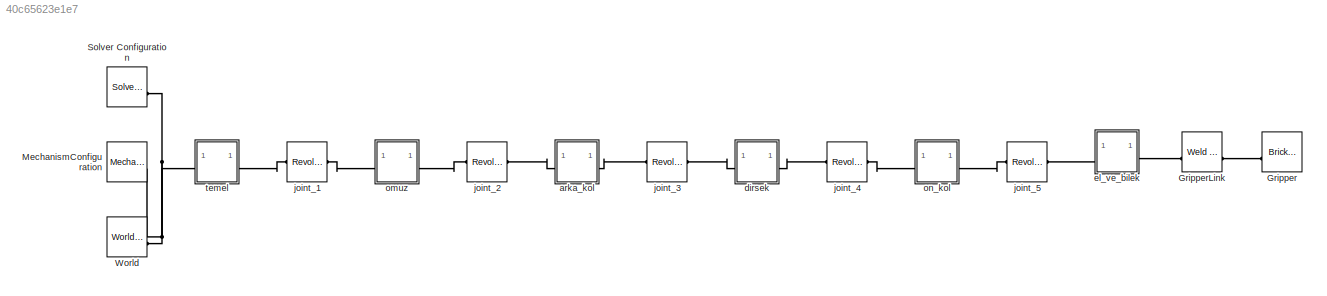
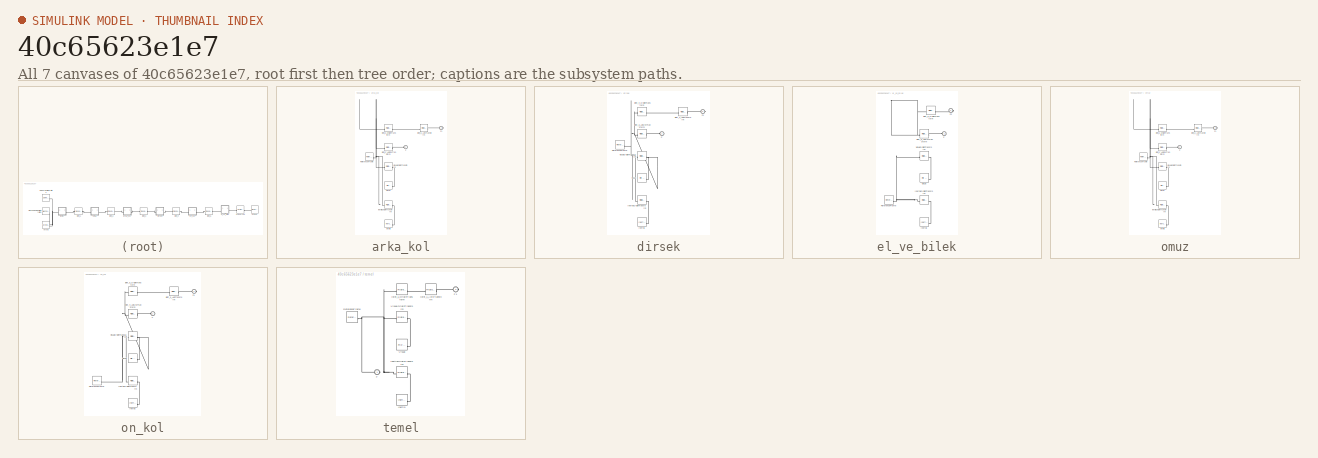
[diagram: thumbnail index - all 7 canvases of the model, root first then tree order]
MODEL slx_40c65623e1e7
KIND model
CONFIG AbsTol = auto
CONFIG EnableMultiTasking = off
CONFIG FixedStep = auto
CONFIG MaxStep = auto
CONFIG MinStep = auto
CONFIG RelTol = 1e-3
CONFIG SampleTimeConstraint = Unconstrained
CONFIG SolverName = VariableStepAuto
CONFIG StartTime = 0.0
CONFIG StopTime = 5
BLOCK [Reference] Gripper  REF=sm_lib/Body Elements/Brick Solid
  NameLocation = top
  SourceBlock = sm_lib/Body Elements/Brick Solid
  SourceType = Brick Solid
BLOCK [Reference] GripperLink  REF=sm_lib/Joints/Weld Joint
  SourceBlock = sm_lib/Joints/Weld Joint
  SourceType = Weld Joint
BLOCK [Reference] MechanismConfiguration  REF=sm_lib/Utilities/Mechanism
Configuration
  SourceBlock = sm_lib/Utilities/Mechanism\nConfiguration
  SourceType = Mechanism\nConfiguration
BLOCK [Reference] Solver Configuration  REF=nesl_utility/Solver
Configuration
  SourceBlock = nesl_utility/Solver\nConfiguration
  SourceType = Solver\nConfiguration
BLOCK [Reference] World  REF=sm_lib/Frames and
Transforms/World Frame
  SourceBlock = sm_lib/Frames and\nTransforms/World Frame
  SourceType = World Frame
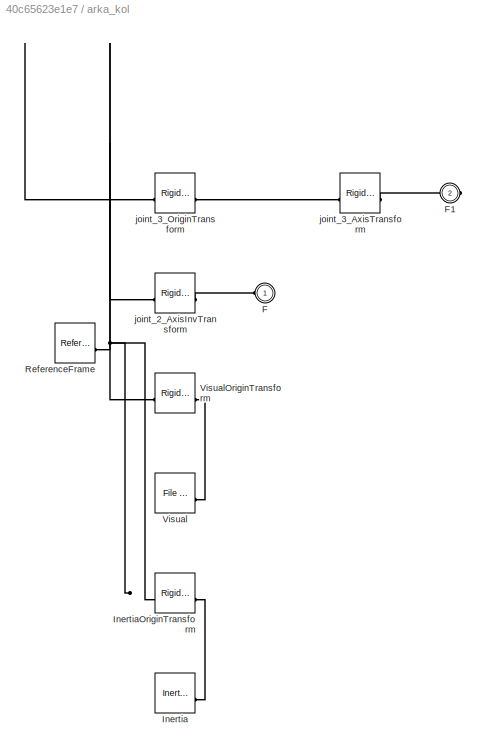
BLOCK [SubSystem] arka_kol
BLOCK [PMIOPort] arka_kol/F
  Side = Left
BLOCK [PMIOPort] arka_kol/F1
  Port = 2
  Side = Right
BLOCK [Reference] arka_kol/Inertia  REF=sm_lib/Body Elements/Inertia
  SourceBlock = sm_lib/Body Elements/Inertia
  SourceType = Inertia
BLOCK [Reference] arka_kol/InertiaOriginTransform  REF=sm_lib/Frames and
Transforms/Rigid
Transform
  SourceBlock = sm_lib/Frames and\nTransforms/Rigid\nTransform
  SourceType = Rigid\nTransform
BLOCK [Reference] arka_kol/ReferenceFrame  REF=sm_lib/Frames and
Transforms/Reference
Frame
  SourceBlock = sm_lib/Frames and\nTransforms/Reference\nFrame
  SourceType = Reference\nFrame
BLOCK [Reference] arka_kol/Visual  REF=sm_lib/Body Elements/File Solid
  SourceBlock = sm_lib/Body Elements/File Solid
  SourceType = File Solid
BLOCK [Reference] arka_kol/VisualOriginTransform  REF=sm_lib/Frames and
Transforms/Rigid
Transform
  SourceBlock = sm_lib/Frames and\nTransforms/Rigid\nTransform
  SourceType = Rigid\nTransform
BLOCK [Reference] arka_kol/joint_2_AxisInvTransform  REF=sm_lib/Frames and
Transforms/Rigid
Transform
  SourceBlock = sm_lib/Frames and\nTransforms/Rigid\nTransform
  SourceType = Rigid\nTransform
BLOCK [Reference] arka_kol/joint_3_AxisTransform  REF=sm_lib/Frames and
Transforms/Rigid
Transform
  SourceBlock = sm_lib/Frames and\nTransforms/Rigid\nTransform
  SourceType = Rigid\nTransform
BLOCK [Reference] arka_kol/joint_3_OriginTransform  REF=sm_lib/Frames and
Transforms/Rigid
Transform
  SourceBlock = sm_lib/Frames and\nTransforms/Rigid\nTransform
  SourceType = Rigid\nTransform
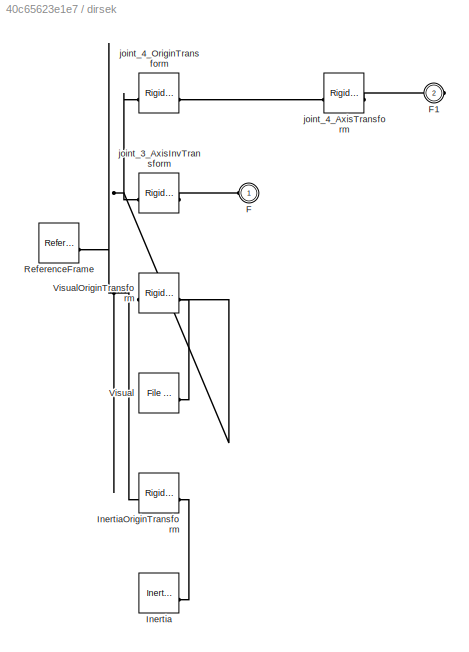
BLOCK [SubSystem] dirsek
BLOCK [PMIOPort] dirsek/F
  Side = Left
BLOCK [PMIOPort] dirsek/F1
  Port = 2
  Side = Right
BLOCK [Reference] dirsek/Inertia  REF=sm_lib/Body Elements/Inertia
  SourceBlock = sm_lib/Body Elements/Inertia
  SourceType = Inertia
BLOCK [Reference] dirsek/InertiaOriginTransform  REF=sm_lib/Frames and
Transforms/Rigid
Transform
  SourceBlock = sm_lib/Frames and\nTransforms/Rigid\nTransform
  SourceType = Rigid\nTransform
BLOCK [Reference] dirsek/ReferenceFrame  REF=sm_lib/Frames and
Transforms/Reference
Frame
  SourceBlock = sm_lib/Frames and\nTransforms/Reference\nFrame
  SourceType = Reference\nFrame
BLOCK [Reference] dirsek/Visual  REF=sm_lib/Body Elements/File Solid
  SourceBlock = sm_lib/Body Elements/File Solid
  SourceType = File Solid
BLOCK [Reference] dirsek/VisualOriginTransform  REF=sm_lib/Frames and
Transforms/Rigid
Transform
  SourceBlock = sm_lib/Frames and\nTransforms/Rigid\nTransform
  SourceType = Rigid\nTransform
BLOCK [Reference] dirsek/joint_3_AxisInvTransform  REF=sm_lib/Frames and
Transforms/Rigid
Transform
  SourceBlock = sm_lib/Frames and\nTransforms/Rigid\nTransform
  SourceType = Rigid\nTransform
BLOCK [Reference] dirsek/joint_4_AxisTransform  REF=sm_lib/Frames and
Transforms/Rigid
Transform
  SourceBlock = sm_lib/Frames and\nTransforms/Rigid\nTransform
  SourceType = Rigid\nTransform
BLOCK [Reference] dirsek/joint_4_OriginTransform  REF=sm_lib/Frames and
Transforms/Rigid
Transform
  SourceBlock = sm_lib/Frames and\nTransforms/Rigid\nTransform
  SourceType = Rigid\nTransform
BLOCK [SubSystem] el_ve_bilek
BLOCK [PMIOPort] el_ve_bilek/F
  Side = Left
BLOCK [PMIOPort] el_ve_bilek/F2
  Port = 2
  Side = Right
BLOCK [Reference] el_ve_bilek/Inertia  REF=sm_lib/Body Elements/Inertia
  SourceBlock = sm_lib/Body Elements/Inertia
  SourceType = Inertia
BLOCK [Reference] el_ve_bilek/InertiaOriginTransform  REF=sm_lib/Frames and
Transforms/Rigid
Transform
  SourceBlock = sm_lib/Frames and\nTransforms/Rigid\nTransform
  SourceType = Rigid\nTransform
BLOCK [Reference] el_ve_bilek/ReferenceFrame  REF=sm_lib/Frames and
Transforms/Reference
Frame
  SourceBlock = sm_lib/Frames and\nTransforms/Reference\nFrame
  SourceType = Reference\nFrame
BLOCK [Reference] el_ve_bilek/Visual  REF=sm_lib/Body Elements/File Solid
  SourceBlock = sm_lib/Body Elements/File Solid
  SourceType = File Solid
BLOCK [Reference] el_ve_bilek/VisualOriginTransform  REF=sm_lib/Frames and
Transforms/Rigid
Transform
  SourceBlock = sm_lib/Frames and\nTransforms/Rigid\nTransform
  SourceType = Rigid\nTransform
BLOCK [Reference] el_ve_bilek/joint_5_AxisInvTransform  REF=sm_lib/Frames and
Transforms/Rigid
Transform
  SourceBlock = sm_lib/Frames and\nTransforms/Rigid\nTransform
  SourceType = Rigid\nTransform
BLOCK [Reference] el_ve_bilek/joint_5_OriginTransform  REF=sm_lib/Frames and
Transforms/Rigid
Transform
  SourceBlock = sm_lib/Frames and\nTransforms/Rigid\nTransform
  SourceType = Rigid\nTransform
BLOCK [Reference] joint_1  REF=sm_lib/Joints/Revolute Joint
  SourceBlock = sm_lib/Joints/Revolute Joint
  SourceType = Revolute Joint
BLOCK [Reference] joint_2  REF=sm_lib/Joints/Revolute Joint
  SourceBlock = sm_lib/Joints/Revolute Joint
  SourceType = Revolute Joint
BLOCK [Reference] joint_3  REF=sm_lib/Joints/Revolute Joint
  SourceBlock = sm_lib/Joints/Revolute Joint
  SourceType = Revolute Joint
BLOCK [Reference] joint_4  REF=sm_lib/Joints/Revolute Joint
  SourceBlock = sm_lib/Joints/Revolute Joint
  SourceType = Revolute Joint
BLOCK [Reference] joint_5  REF=sm_lib/Joints/Revolute Joint
  SourceBlock = sm_lib/Joints/Revolute Joint
  SourceType = Revolute Joint
BLOCK [SubSystem] omuz
BLOCK [PMIOPort] omuz/F
  Side = Left
BLOCK [PMIOPort] omuz/F1
  Port = 2
  Side = Right
BLOCK [Reference] omuz/Inertia  REF=sm_lib/Body Elements/Inertia
  SourceBlock = sm_lib/Body Elements/Inertia
  SourceType = Inertia
BLOCK [Reference] omuz/InertiaOriginTransform  REF=sm_lib/Frames and
Transforms/Rigid
Transform
  SourceBlock = sm_lib/Frames and\nTransforms/Rigid\nTransform
  SourceType = Rigid\nTransform
BLOCK [Reference] omuz/ReferenceFrame  REF=sm_lib/Frames and
Transforms/Reference
Frame
  SourceBlock = sm_lib/Frames and\nTransforms/Reference\nFrame
  SourceType = Reference\nFrame
BLOCK [Reference] omuz/Visual  REF=sm_lib/Body Elements/File Solid
  SourceBlock = sm_lib/Body Elements/File Solid
  SourceType = File Solid
BLOCK [Reference] omuz/VisualOriginTransform  REF=sm_lib/Frames and
Transforms/Rigid
Transform
  SourceBlock = sm_lib/Frames and\nTransforms/Rigid\nTransform
  SourceType = Rigid\nTransform
BLOCK [Reference] omuz/joint_1_AxisInvTransform  REF=sm_lib/Frames and
Transforms/Rigid
Transform
  SourceBlock = sm_lib/Frames and\nTransforms/Rigid\nTransform
  SourceType = Rigid\nTransform
BLOCK [Reference] omuz/joint_2_AxisTransform  REF=sm_lib/Frames and
Transforms/Rigid
Transform
  SourceBlock = sm_lib/Frames and\nTransforms/Rigid\nTransform
  SourceType = Rigid\nTransform
BLOCK [Reference] omuz/joint_2_OriginTransform  REF=sm_lib/Frames and
Transforms/Rigid
Transform
  SourceBlock = sm_lib/Frames and\nTransforms/Rigid\nTransform
  SourceType = Rigid\nTransform
BLOCK [SubSystem] on_kol
BLOCK [PMIOPort] on_kol/F
  Side = Left
BLOCK [PMIOPort] on_kol/F1
  Port = 2
  Side = Right
BLOCK [Reference] on_kol/Inertia  REF=sm_lib/Body Elements/Inertia
  SourceBlock = sm_lib/Body Elements/Inertia
  SourceType = Inertia
BLOCK [Reference] on_kol/InertiaOriginTransform  REF=sm_lib/Frames and
Transforms/Rigid
Transform
  SourceBlock = sm_lib/Frames and\nTransforms/Rigid\nTransform
  SourceType = Rigid\nTransform
BLOCK [Reference] on_kol/ReferenceFrame  REF=sm_lib/Frames and
Transforms/Reference
Frame
  SourceBlock = sm_lib/Frames and\nTransforms/Reference\nFrame
  SourceType = Reference\nFrame
BLOCK [Reference] on_kol/Visual  REF=sm_lib/Body Elements/File Solid
  SourceBlock = sm_lib/Body Elements/File Solid
  SourceType = File Solid
BLOCK [Reference] on_kol/VisualOriginTransform  REF=sm_lib/Frames and
Transforms/Rigid
Transform
  SourceBlock = sm_lib/Frames and\nTransforms/Rigid\nTransform
  SourceType = Rigid\nTransform
BLOCK [Reference] on_kol/joint_4_AxisInvTransform  REF=sm_lib/Frames and
Transforms/Rigid
Transform
  SourceBlock = sm_lib/Frames and\nTransforms/Rigid\nTransform
  SourceType = Rigid\nTransform
BLOCK [Reference] on_kol/joint_5_AxisTransform  REF=sm_lib/Frames and
Transforms/Rigid
Transform
  SourceBlock = sm_lib/Frames and\nTransforms/Rigid\nTransform
  SourceType = Rigid\nTransform
BLOCK [Reference] on_kol/joint_5_OriginTransform  REF=sm_lib/Frames and
Transforms/Rigid
Transform
  SourceBlock = sm_lib/Frames and\nTransforms/Rigid\nTransform
  SourceType = Rigid\nTransform
BLOCK [SubSystem] temel
BLOCK [PMIOPort] temel/F
  Side = Left
BLOCK [PMIOPort] temel/F1
  Port = 2
  Side = Right
BLOCK [Reference] temel/Inertia  REF=sm_lib/Body Elements/Inertia
  SourceBlock = sm_lib/Body Elements/Inertia
  SourceType = Inertia
BLOCK [Reference] temel/InertiaOriginTransform  REF=sm_lib/Frames and
Transforms/Rigid
Transform
  SourceBlock = sm_lib/Frames and\nTransforms/Rigid\nTransform
  SourceType = Rigid\nTransform
BLOCK [Reference] temel/ReferenceFrame  REF=sm_lib/Frames and
Transforms/Reference
Frame
  SourceBlock = sm_lib/Frames and\nTransforms/Reference\nFrame
  SourceType = Reference\nFrame
BLOCK [Reference] temel/Visual  REF=sm_lib/Body Elements/File Solid
  SourceBlock = sm_lib/Body Elements/File Solid
  SourceType = File Solid
BLOCK [Reference] temel/VisualOriginTransform  REF=sm_lib/Frames and
Transforms/Rigid
Transform
  SourceBlock = sm_lib/Frames and\nTransforms/Rigid\nTransform
  SourceType = Rigid\nTransform
BLOCK [Reference] temel/joint_1_AxisTransform  REF=sm_lib/Frames and
Transforms/Rigid
Transform
  SourceBlock = sm_lib/Frames and\nTransforms/Rigid\nTransform
  SourceType = Rigid\nTransform
BLOCK [Reference] temel/joint_1_OriginTransform  REF=sm_lib/Frames and
Transforms/Rigid
Transform
  SourceBlock = sm_lib/Frames and\nTransforms/Rigid\nTransform
  SourceType = Rigid\nTransform
PLINE Gripper:RConn1 -- GripperLink:RConn1
PLINE GripperLink:LConn1 -- el_ve_bilek:RConn1
PNET net1: MechanismConfiguration:RConn1 -- Solver Configuration:RConn1 -- World:RConn1 -- temel:LConn1
PLINE arka_kol/F1:RConn1 -- arka_kol/joint_3_AxisTransform:RConn1
PLINE arka_kol/F:RConn1 -- arka_kol/joint_2_AxisInvTransform:RConn1
PLINE arka_kol/Inertia:RConn1 -- arka_kol/InertiaOriginTransform:RConn1
PNET net2: arka_kol/InertiaOriginTransform:LConn1 -- arka_kol/ReferenceFrame:RConn1 -- arka_kol/VisualOriginTransform:LConn1 -- arka_kol/joint_2_AxisInvTransform:LConn1 -- arka_kol/joint_3_OriginTransform:LConn1
PLINE arka_kol/Visual:RConn1 -- arka_kol/VisualOriginTransform:RConn1
PLINE arka_kol/joint_3_AxisTransform:LConn1 -- arka_kol/joint_3_OriginTransform:RConn1
PLINE arka_kol:LConn1 -- joint_2:RConn1
PLINE arka_kol:RConn1 -- joint_3:LConn1
PLINE dirsek/F1:RConn1 -- dirsek/joint_4_AxisTransform:RConn1
PLINE dirsek/F:RConn1 -- dirsek/joint_3_AxisInvTransform:RConn1
PLINE dirsek/Inertia:RConn1 -- dirsek/InertiaOriginTransform:RConn1
PNET net3: dirsek/InertiaOriginTransform:LConn1 -- dirsek/ReferenceFrame:RConn1 -- dirsek/VisualOriginTransform:LConn1 -- dirsek/joint_3_AxisInvTransform:LConn1 -- dirsek/joint_4_OriginTransform:LConn1
PLINE dirsek/Visual:RConn1 -- dirsek/VisualOriginTransform:RConn1
PLINE dirsek/joint_4_AxisTransform:LConn1 -- dirsek/joint_4_OriginTransform:RConn1
PLINE dirsek:LConn1 -- joint_3:RConn1
PLINE dirsek:RConn1 -- joint_4:LConn1
PLINE el_ve_bilek/F2:RConn1 -- el_ve_bilek/joint_5_OriginTransform:RConn1
PLINE el_ve_bilek/F:RConn1 -- el_ve_bilek/joint_5_AxisInvTransform:RConn1
PLINE el_ve_bilek/Inertia:RConn1 -- el_ve_bilek/InertiaOriginTransform:RConn1
PNET net4: el_ve_bilek/InertiaOriginTransform:LConn1 -- el_ve_bilek/ReferenceFrame:RConn1 -- el_ve_bilek/VisualOriginTransform:LConn1 -- el_ve_bilek/joint_5_AxisInvTransform:LConn1 -- el_ve_bilek/joint_5_OriginTransform:LConn1
PLINE el_ve_bilek/Visual:RConn1 -- el_ve_bilek/VisualOriginTransform:RConn1
PLINE el_ve_bilek:LConn1 -- joint_5:RConn1
PLINE joint_1:LConn1 -- temel:RConn1
PLINE joint_1:RConn1 -- omuz:LConn1
PLINE joint_2:LConn1 -- omuz:RConn1
PLINE joint_4:RConn1 -- on_kol:LConn1
PLINE joint_5:LConn1 -- on_kol:RConn1
PLINE omuz/F1:RConn1 -- omuz/joint_2_AxisTransform:RConn1
PLINE omuz/F:RConn1 -- omuz/joint_1_AxisInvTransform:RConn1
PLINE omuz/Inertia:RConn1 -- omuz/InertiaOriginTransform:RConn1
PNET net5: omuz/InertiaOriginTransform:LConn1 -- omuz/ReferenceFrame:RConn1 -- omuz/VisualOriginTransform:LConn1 -- omuz/joint_1_AxisInvTransform:LConn1 -- omuz/joint_2_OriginTransform:LConn1
PLINE omuz/Visual:RConn1 -- omuz/VisualOriginTransform:RConn1
PLINE omuz/joint_2_AxisTransform:LConn1 -- omuz/joint_2_OriginTransform:RConn1
PLINE on_kol/F1:RConn1 -- on_kol/joint_5_AxisTransform:RConn1
PLINE on_kol/F:RConn1 -- on_kol/joint_4_AxisInvTransform:RConn1
PLINE on_kol/Inertia:RConn1 -- on_kol/InertiaOriginTransform:RConn1
PNET net6: on_kol/InertiaOriginTransform:LConn1 -- on_kol/ReferenceFrame:RConn1 -- on_kol/VisualOriginTransform:LConn1 -- on_kol/joint_4_AxisInvTransform:LConn1 -- on_kol/joint_5_OriginTransform:LConn1
PLINE on_kol/Visual:RConn1 -- on_kol/VisualOriginTransform:RConn1
PLINE on_kol/joint_5_AxisTransform:LConn1 -- on_kol/joint_5_OriginTransform:RConn1
PLINE temel/F1:RConn1 -- temel/joint_1_AxisTransform:RConn1
PNET net7: temel/F:RConn1 -- temel/InertiaOriginTransform:LConn1 -- temel/ReferenceFrame:RConn1 -- temel/VisualOriginTransform:LConn1 -- temel/joint_1_OriginTransform:LConn1
PLINE temel/Inertia:RConn1 -- temel/InertiaOriginTransform:RConn1
PLINE temel/Visual:RConn1 -- temel/VisualOriginTransform:RConn1
PLINE temel/joint_1_AxisTransform:LConn1 -- temel/joint_1_OriginTransform:RConn1
note: PNET lines group multi-terminal physical nets as a canonical sorted terminal list (undirected conserving connections); 2-terminal nets keep the pairwise PLINE form
